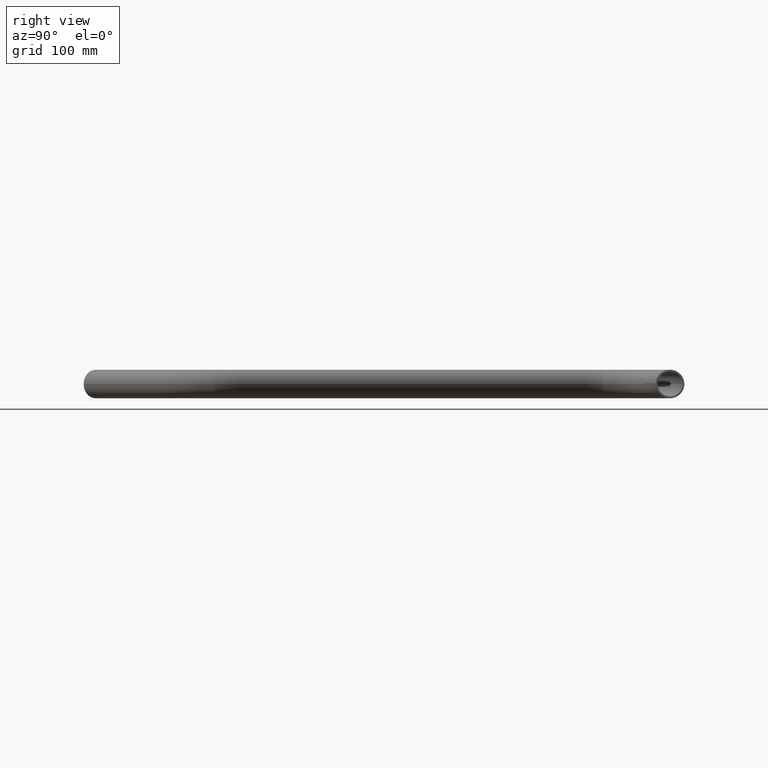
[diagram: clean part render]
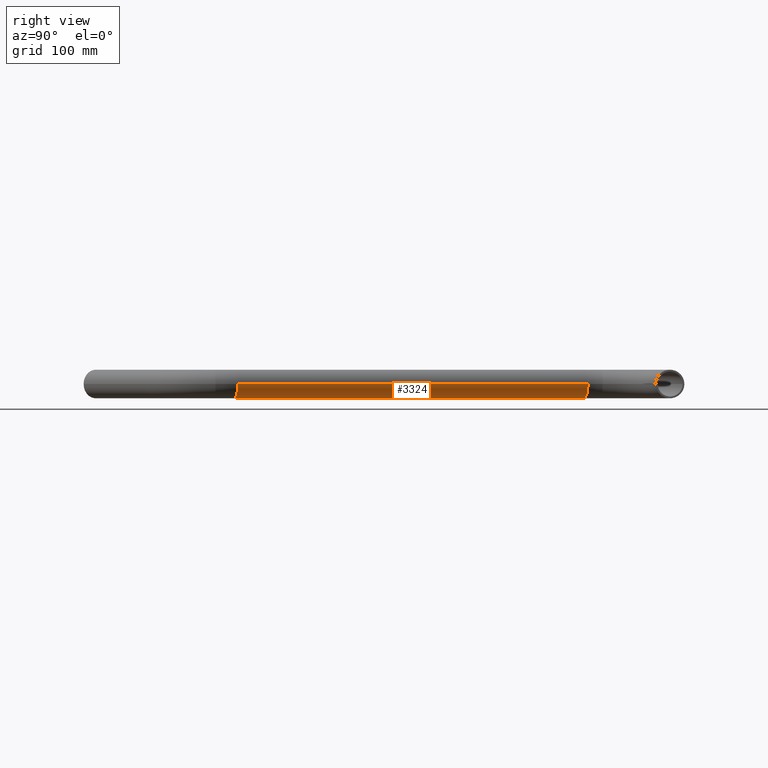
[diagram: same view with one face highlighted and labeled with its STEP entity id]
A machine part, right view. The second image highlights one B-rep face of the part: STEP entity #3324.
In plain terms, the highlighted cylindrical surface (edge-blend (fillet) strip) has radius 21.2 mm, axis along (-0.2756, 0.9613, 0).
Its self-contained STEP definition (entity closure, byte-faithful):
#107 = AXIS2_PLACEMENT_3D ( 'NONE', #1098, #4165, #8345 ) ;
#417 = VECTOR ( 'NONE', #12989, 1000.000000000000200 ) ;
#1070 = EDGE_CURVE ( 'NONE', #7219, #1105, #11141, .T. ) ;
#1098 = CARTESIAN_POINT ( 'NONE',  ( 191.2412594555299000, 204.9160804766116300, 0.0000000000000000000 ) ) ;
#1105 = VERTEX_POINT ( 'NONE', #9088 ) ;
#1402 = DIRECTION ( 'NONE',  ( -0.2756373558170608400, 0.9612616959383013500, 0.0000000000000000000 ) ) ;
#1413 = ORIENTED_EDGE ( 'NONE', *, *, #3963, .F. ) ;
#1607 = FACE_OUTER_BOUND ( 'NONE', #11874, .T. ) ;
#2105 = CIRCLE ( 'NONE', #7514, 21.20000000000001000 ) ;
#2350 = CARTESIAN_POINT ( 'NONE',  ( 170.8625115016379800, 199.0725685332896300, 0.0000000000000000000 ) ) ;
#2875 = DIRECTION ( 'NONE',  ( -0.2756373558170578400, 0.9612616959383020200, -0.0000000000000000000 ) ) ;
#3324 = ADVANCED_FACE ( 'NONE', ( #1607 ), #9546, .T. ) ;
#3870 = AXIS2_PLACEMENT_3D ( 'NONE', #9082, #2875, #10105 ) ;
#3963 = EDGE_CURVE ( 'NONE', #7562, #13298, #11797, .T. ) ;
#4165 = DIRECTION ( 'NONE',  ( -0.2756373558170608400, 0.9612616959383013500, 0.0000000000000000000 ) ) ;
#4822 = CARTESIAN_POINT ( 'NONE',  ( 170.8625115016379000, 199.0725685332899100, 0.0000000000000000000 ) ) ;
#5204 = CARTESIAN_POINT ( 'NONE',  ( 211.6200074094218700, 210.7595924199333100, 2.596251214192390000E-015 ) ) ;
#7050 = ORIENTED_EDGE ( 'NONE', *, *, #1070, .T. ) ;
#7219 = VERTEX_POINT ( 'NONE', #2350 ) ;
#7283 = ORIENTED_EDGE ( 'NONE', *, *, #9055, .T. ) ;
#7514 = AXIS2_PLACEMENT_3D ( 'NONE', #7600, #1402, #8635 ) ;
#7562 = VERTEX_POINT ( 'NONE', #9573 ) ;
#7600 = CARTESIAN_POINT ( 'NONE',  ( 191.2412594555299800, 204.9160804766113400, 0.0000000000000000000 ) ) ;
#8158 = ORIENTED_EDGE ( 'NONE', *, *, #13289, .F. ) ;
#8345 = DIRECTION ( 'NONE',  ( -0.9612616959383012400, -0.2756373558170608900, 0.0000000000000000000 ) ) ;
#8635 = DIRECTION ( 'NONE',  ( -0.9612616959383012400, -0.2756373558170608900, 0.0000000000000000000 ) ) ;
#9055 = EDGE_CURVE ( 'NONE', #7562, #7219, #2105, .T. ) ;
#9082 = CARTESIAN_POINT ( 'NONE',  ( 42.41359445614449400, 723.9398290384587000, 0.0000000000000000000 ) ) ;
#9088 = CARTESIAN_POINT ( 'NONE',  ( 22.03484650225252800, 718.0963170951369000, 0.0000000000000000000 ) ) ;
#9365 = VECTOR ( 'NONE', #12417, 1000.000000000000200 ) ;
#9546 = CYLINDRICAL_SURFACE ( 'NONE', #107, 21.20000000000001000 ) ;
#9573 = CARTESIAN_POINT ( 'NONE',  ( 211.6200074094219600, 210.7595924199330300, 2.596251214192390000E-015 ) ) ;
#10105 = DIRECTION ( 'NONE',  ( 0.9612616959383015700, 0.2756373558170595000, 0.0000000000000000000 ) ) ;
#10726 = CIRCLE ( 'NONE', #3870, 21.20000000000001700 ) ;
#11104 = CARTESIAN_POINT ( 'NONE',  ( 62.79234241003651800, 729.7833409817802700, 2.596251214192390000E-015 ) ) ;
#11141 = LINE ( 'NONE', #4822, #417 ) ;
#11797 = LINE ( 'NONE', #5204, #9365 ) ;
#11874 = EDGE_LOOP ( 'NONE', ( #1413, #7283, #7050, #8158 ) ) ;
#12417 = DIRECTION ( 'NONE',  ( -0.2756373558170607800, 0.9612616959383011300, 0.0000000000000000000 ) ) ;
#12989 = DIRECTION ( 'NONE',  ( -0.2756373558170607800, 0.9612616959383011300, 0.0000000000000000000 ) ) ;
#13289 = EDGE_CURVE ( 'NONE', #13298, #1105, #10726, .T. ) ;
#13298 = VERTEX_POINT ( 'NONE', #11104 ) ;